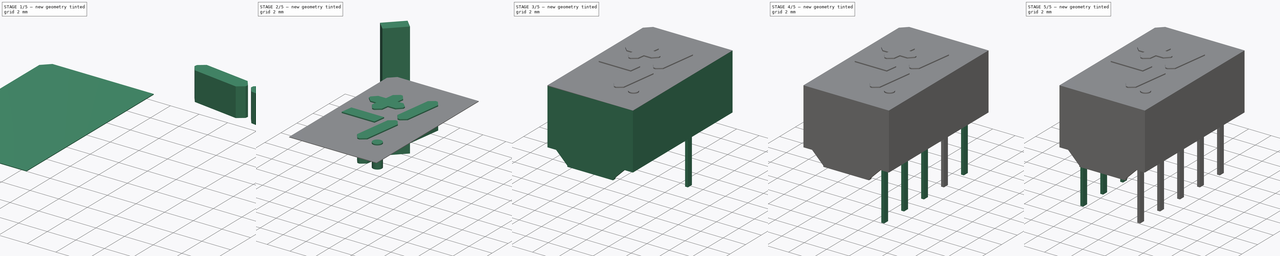
[diagram: build sequence overview — one tinted view per stage of 5, left to right]
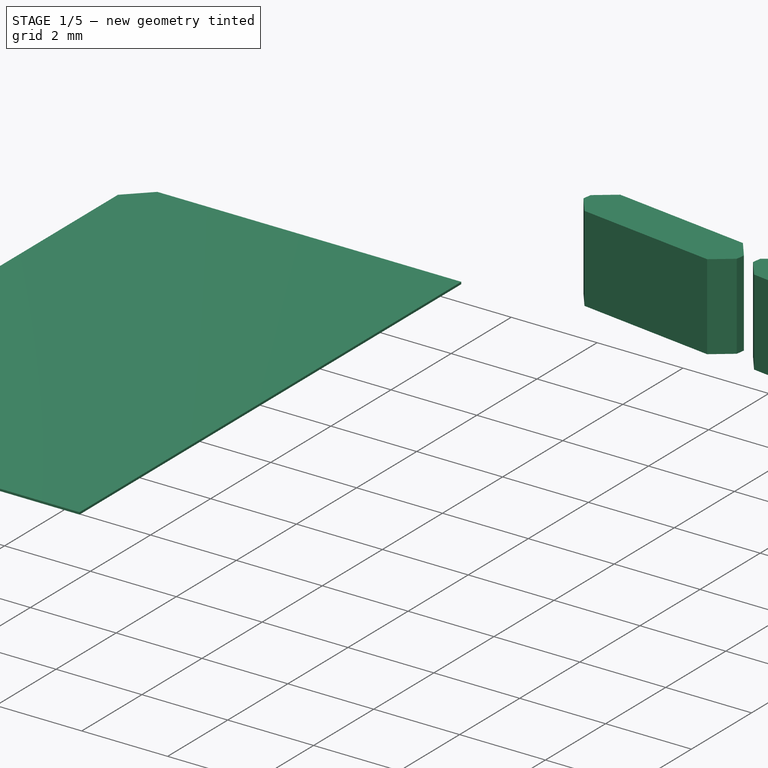
[diagram: stage 1 of 5 — iso view after this stage's code; geometry added in this stage tinted green]
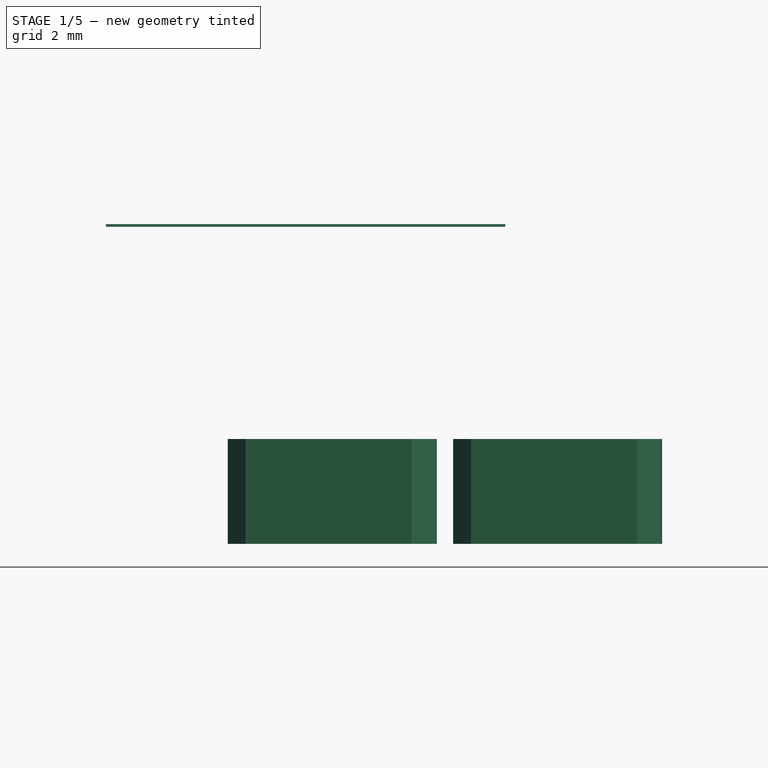
[diagram: stage 1 of 5 — front view after this stage's code; geometry added in this stage tinted green]
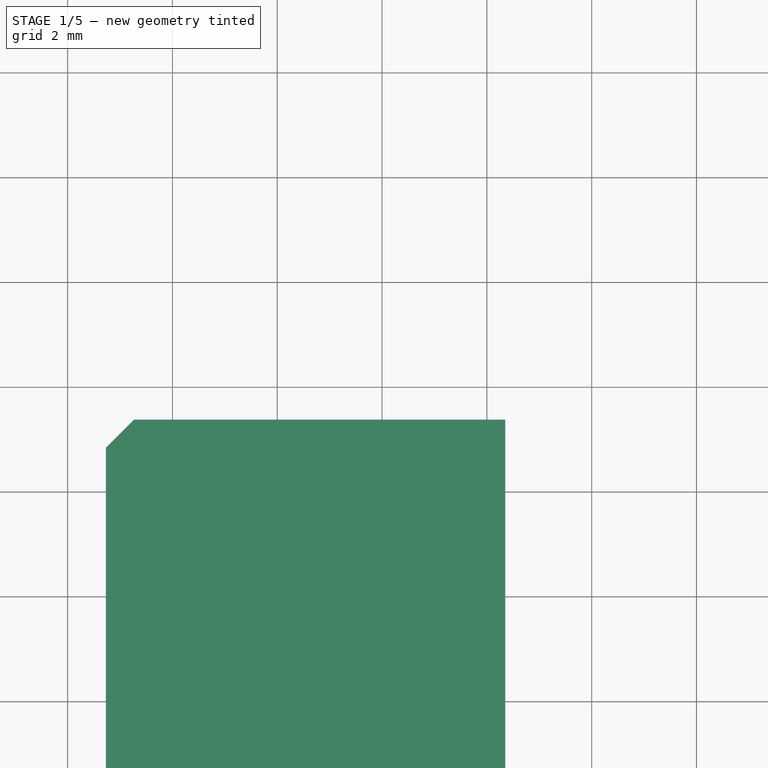
[diagram: stage 1 of 5 — top view after this stage's code; geometry added in this stage tinted green]
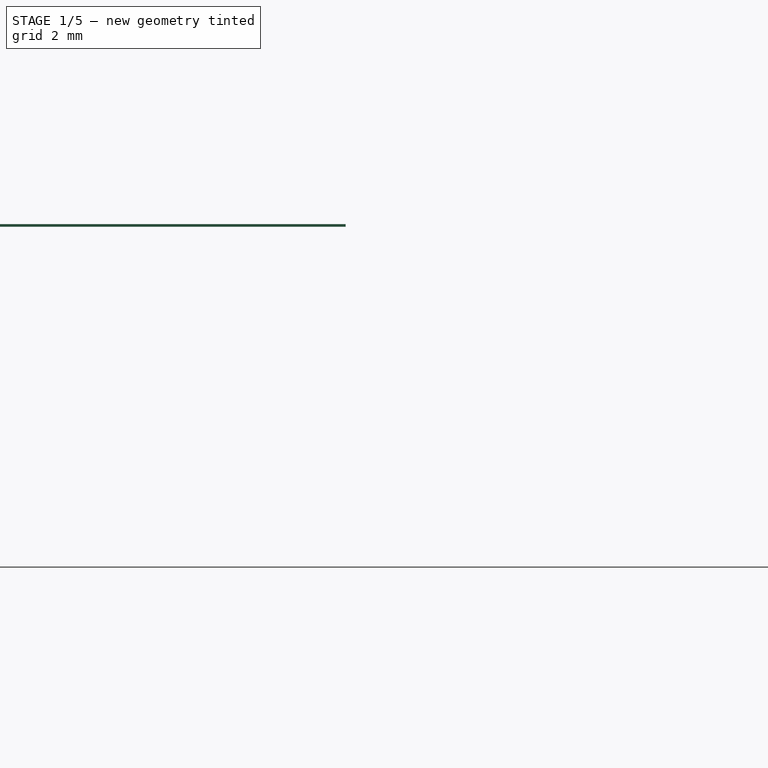
[diagram: stage 1 of 5 — right view after this stage's code; geometry added in this stage tinted green]
FCSTD DOCUMENT  (FreeCAD 0.17R11223 (Git))
Label: HDSP-7507_4
License: All rights reserved
LicenseURL: http://en.wikipedia.org/wiki/All_rights_reserved
objects: Part::Box×33, Part::Chamfer×13, Part::MultiFuse×11, Part::Cut×7, Sketcher::SketchObject×1, PartDesign::Pad×1, PartDesign::Body×1, Part::Cylinder×1, App::DocumentObjectGroup×1
note: 69 computed .brp shape members not serialized (recipe doc carries the construction recipe); baked Part::Feature solids carry a one-line shape summary decoded from their .brp

FEATURE [Part::Box] Box032  label="Kub032"
  AttacherType = Attacher::AttachEngine3D
  Height = 2
  Length = 3
  Placement = pos=(5.7,14.5,0) rot=(0,0,-1;0.139626rad)
  Width = 1
FEATURE [Part::Box] Box033  label="Kub033"
  AttacherType = Attacher::AttachEngine3D
  Height = 2
  Length = 4
  Placement = pos=(9,13,0) rot=(0,0,-1;0.139626rad)
  Width = 1
FEATURE [Part::Chamfer] Chamfer006
  Base = -> Box033
  Edges = 1 edges r=0.4: [Edge3]
FEATURE [Part::Chamfer] Chamfer007
  Base = -> Chamfer006
  Edges = 1 edges r=0.4: [Edge3]
  Placement = pos=(-3.7,-1,0) rot=(0,0,1;0rad)
FEATURE [Part::Box] Box043  label="Kub043"
  AttacherType = Attacher::AttachEngine3D
  Height = 2
  Length = 4
  Placement = pos=(0,18,0) rot=(0,0,-1;0.139626rad)
  Width = 1
FEATURE [Part::Chamfer] Chamfer017
  Base = -> Box043
  Edges = 1 edges r=0.4: [Edge5]
FEATURE [Part::Chamfer] Chamfer018
  Base = -> Chamfer017
  Edges = 1 edges r=0.4: [Edge3]
FEATURE [Part::Box] Box044  label="Kub045"
  AttacherType = Attacher::AttachEngine3D
  Height = 0.05
  Length = 7.62
  Placement = pos=(-1.27,-11.43,6.05) rot=(0,0,1;0rad)
  Width = 12.7
FEATURE [Part::Box] Box045  label="Kub044"
  AttacherType = Attacher::AttachEngine3D
  Height = 10
  Length = 2
  Placement = pos=(-1.5,0.5,0) rot=(0,0,1;0.785398rad)
  Width = 1
FEATURE [Part::Chamfer] Chamfer019  label="Minus001"
  Base = -> Box032
  Edges = 4 edges r=0.4: [Edge1,Edge3,Edge5,Edge7]
FEATURE [Part::Chamfer] Chamfer020  label="RightTop"
  Base = -> Chamfer007
  Edges = 2 edges r=0.4: [Edge17,Edge18]
FEATURE [Part::Chamfer] Chamfer021  label="RightBottom"
  Base = -> Chamfer018
  Edges = 2 edges r=0.4: [Edge17,Edge18]
  Placement = pos=(1,-5.5,0) rot=(0,0,1;0rad)
FEATURE [Part::Cut] Cut009  label="Top"
  Base = -> Box044
  Tool = -> Box045
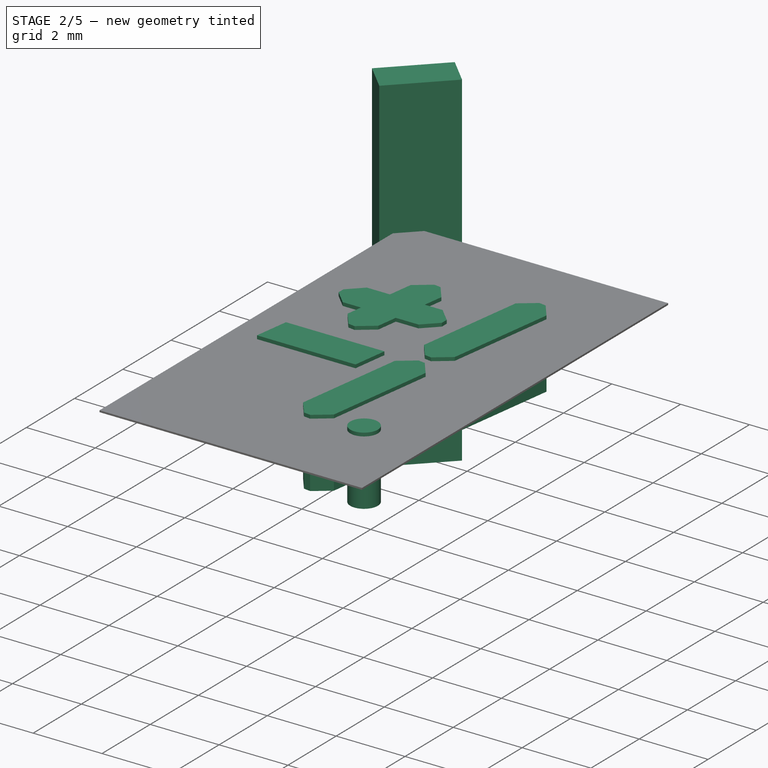
[diagram: stage 2 of 5 — iso view after this stage's code; geometry added in this stage tinted green]
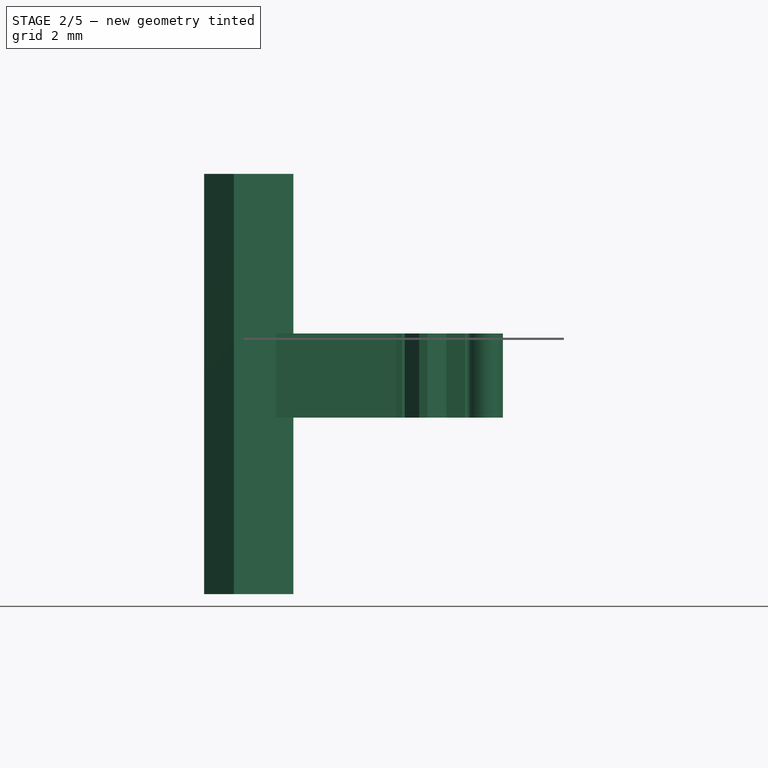
[diagram: stage 2 of 5 — front view after this stage's code; geometry added in this stage tinted green]
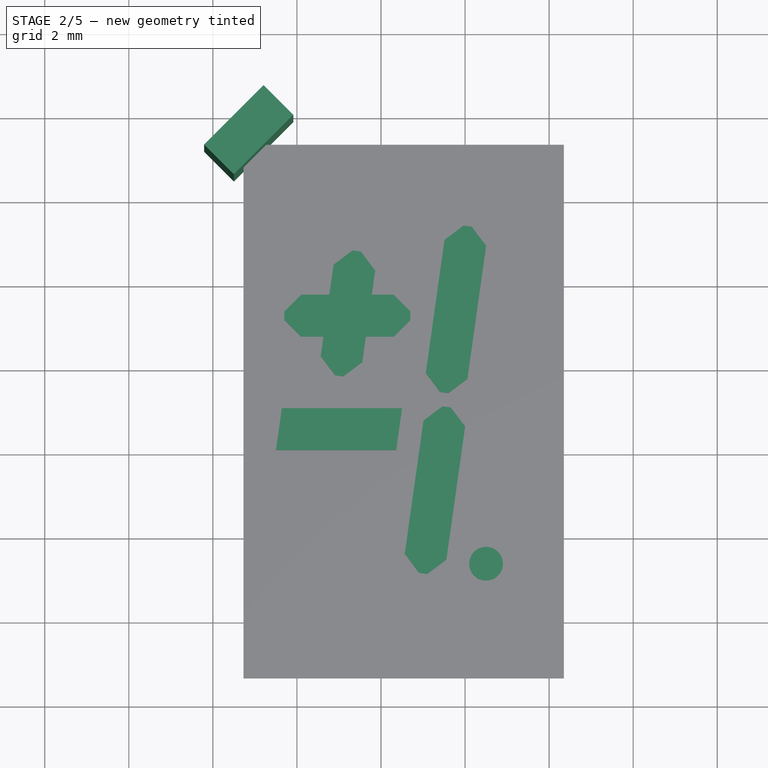
[diagram: stage 2 of 5 — top view after this stage's code; geometry added in this stage tinted green]
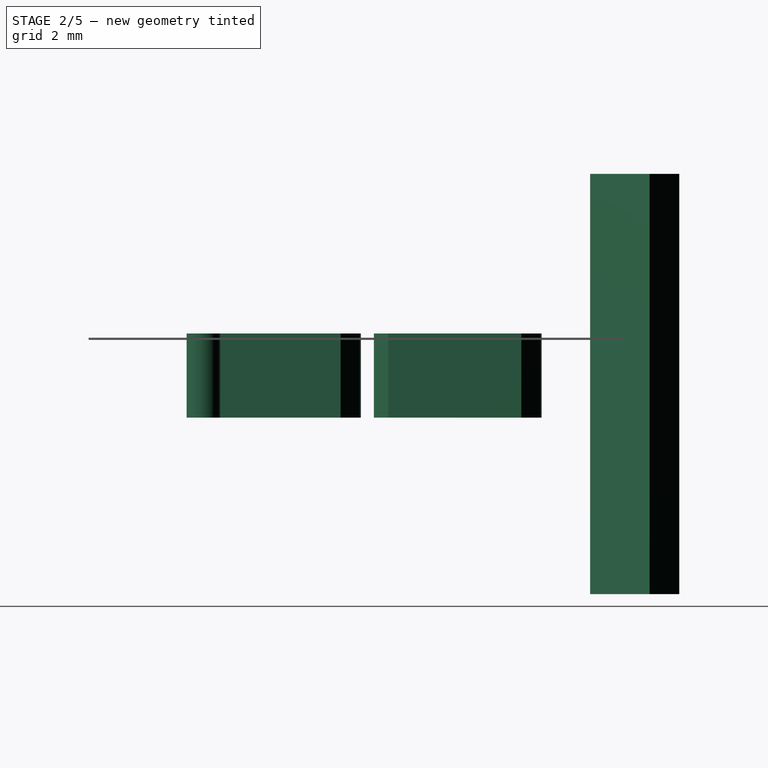
[diagram: stage 2 of 5 — right view after this stage's code; geometry added in this stage tinted green]
FEATURE [Part::Box] Box034  label="Kub034"
  AttacherType = Attacher::AttachEngine3D
  Height = 2
  Length = 1
  Placement = pos=(-3,14,0) rot=(0,0,1;0rad)
  Width = 4
FEATURE [Part::Box] Box035  label="Kub035"
  AttacherType = Attacher::AttachEngine3D
  Height = 2
  Length = 3
  Placement = pos=(-4,17.14,0) rot=(0,0,-1;0.139626rad)
  Width = 3
FEATURE [Part::Box] Box036  label="Kub036"
  AttacherType = Attacher::AttachEngine3D
  Height = 2
  Length = 3
  Placement = pos=(-4,13.27,0) rot=(0,0,-1;0.139626rad)
  Width = 1
FEATURE [Part::Box] Box037  label="Kub037"
  AttacherType = Attacher::AttachEngine3D
  Height = 2
  Length = 1
  Placement = pos=(-10,14,0) rot=(0,0,1;0rad)
  Width = 3
FEATURE [Part::Cut] Cut002
  Base = -> Box034
  Tool = -> Box036
FEATURE [Part::Cut] Cut003  label="Minus"
  Base = -> Cut002
  Placement = pos=(7,-0.5,0) rot=(0,0,1;0rad)
  Tool = -> Box035
FEATURE [Part::Chamfer] Chamfer012
  Base = -> Box037
  Edges = 1 edges r=0.4: [Edge5]
FEATURE [Part::Chamfer] Chamfer013
  Base = -> Chamfer012
  Edges = 1 edges r=0.4: [Edge3]
FEATURE [Part::Chamfer] Chamfer014
  Base = -> Chamfer013
  Edges = 1 edges r=0.4: [Edge18]
FEATURE [Part::Chamfer] Chamfer015  label="Minus002"
  Base = -> Chamfer014
  Edges = 1 edges r=0.4: [Edge15]
  Placement = pos=(16.7,-0.7,0) rot=(0,0,1;0rad)
FEATURE [Part::Cylinder] Cylinder016  label="Dot"
  Angle = 360
  AttacherType = Attacher::AttachEngine3D
  Height = 2
  Placement = pos=(1.3,11.5,0) rot=(0,0,1;0rad)
  Radius = 0.4
FEATURE [Part::Box] Box042  label="Kub042"
  AttacherType = Attacher::AttachEngine3D
  Height = 10
  Length = 2
  Placement = pos=(-1.5,0.5,0) rot=(0,0,1;0.785398rad)
  Width = 1
FEATURE [Part::MultiFuse] Fusion014  label="Digit"
  Placement = pos=(16,-10,4.2) rot=(0,0,1;1.5708rad)
  Shapes = -> [Chamfer015,Chamfer019,Chamfer020,Chamfer021,Cut003,Cylinder016]
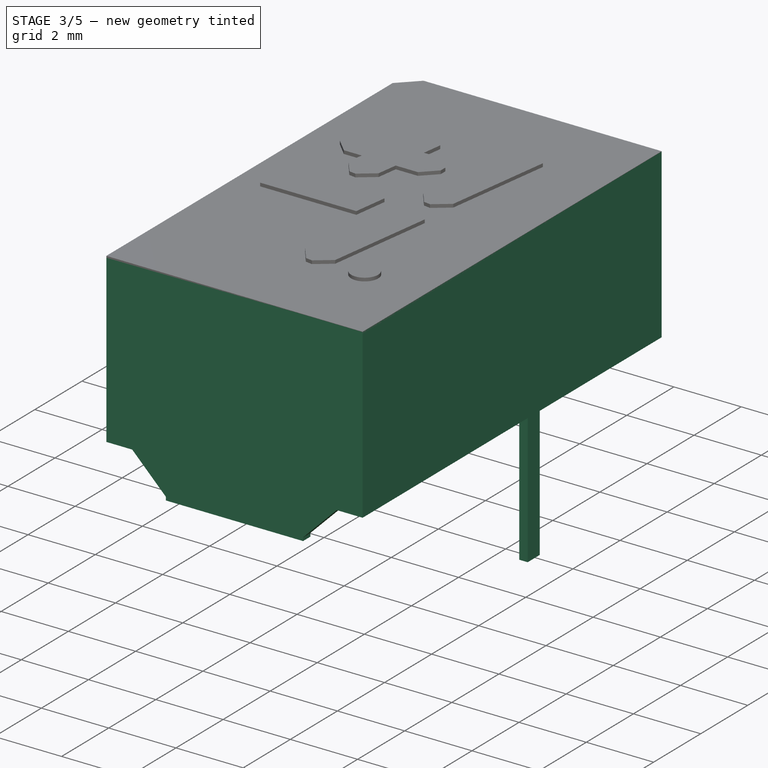
[diagram: stage 3 of 5 — iso view after this stage's code; geometry added in this stage tinted green]
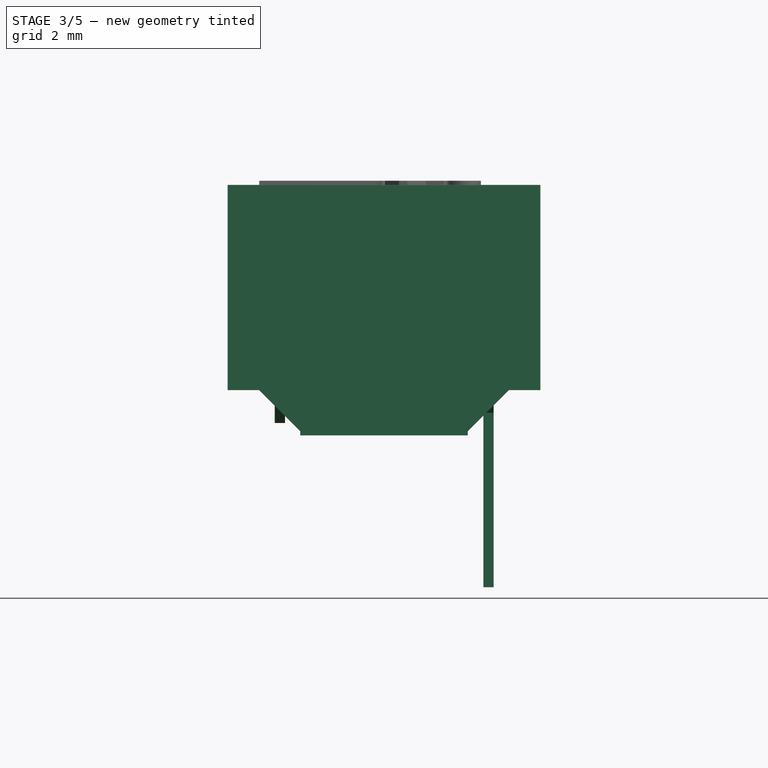
[diagram: stage 3 of 5 — front view after this stage's code; geometry added in this stage tinted green]
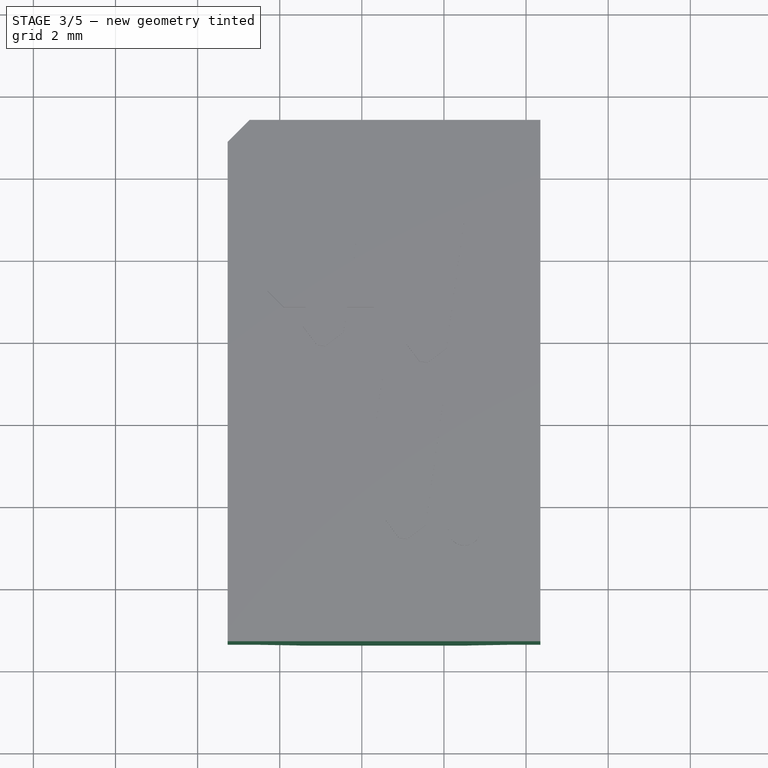
[diagram: stage 3 of 5 — top view after this stage's code; geometry added in this stage tinted green]
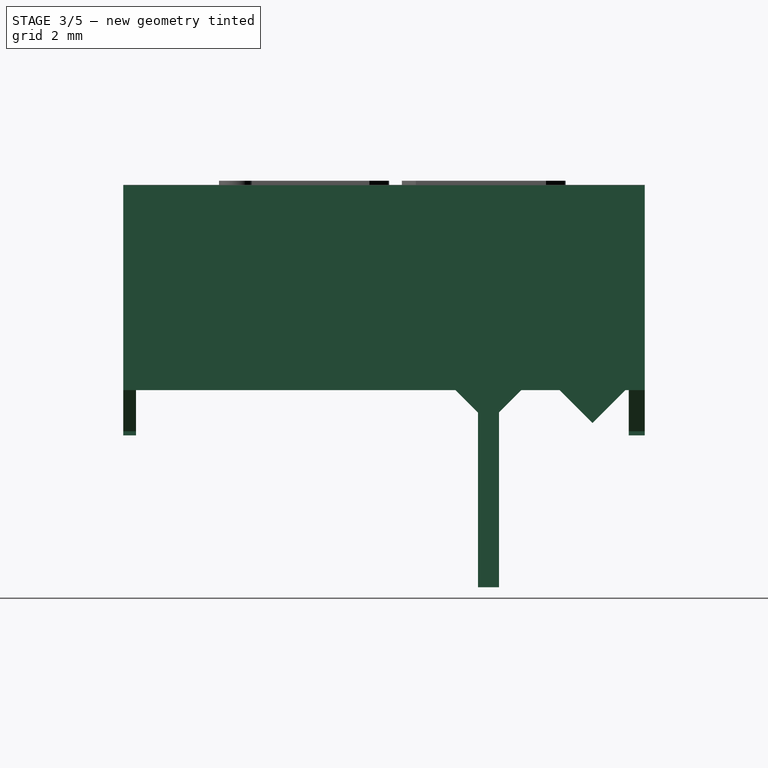
[diagram: stage 3 of 5 — right view after this stage's code; geometry added in this stage tinted green]
FEATURE [Sketcher::SketchObject] Sketch
  MapMode = 5
  Support = -> [XY_Plane]
  sketch-geometry (4):
    g0: LineSegment StartX=-1.27 StartY=1.27 StartZ=0 EndX=6.35 EndY=1.27 EndZ=0
    g1: LineSegment StartX=6.35 StartY=1.27 StartZ=0 EndX=6.35 EndY=-11.43 EndZ=0
    g2: LineSegment StartX=6.35 StartY=-11.43 StartZ=0 EndX=-1.27 EndY=-11.43 EndZ=0
    g3: LineSegment StartX=-1.27 StartY=-11.43 StartZ=0 EndX=-1.27 EndY=1.27 EndZ=0
  constraints (12):
    c: Coincident(g0,g1)
    c: Coincident(g1,g2)
    c: Coincident(g2,g3)
    c: Coincident(g3,g0)
    c: Horizontal(g0)
    c: Horizontal(g2)
    c: Vertical(g1)
    c: Vertical(g3)
    c: DistanceY(g1,g0) = 12.7
    c: DistanceX(g2,g1) = 7.62
    c: DistanceX(g0,g-1) = 1.27
    c: DistanceY(g-1,g0) = 1.27
FEATURE [PartDesign::Pad] Pad
  Length = 6.09
  Length2 = 100
  Profile = -> Sketch
  Type = 0
FEATURE [PartDesign::Body] Body
  Group = -> [Sketch,Pad]
  Origin = -> BodyOrigin
  Tip = -> Pad
FEATURE [Part::Box] Box  label="Kub"
  AttacherType = Attacher::AttachEngine3D
  Height = 1.1
  Length = 3
  Placement = pos=(4.58,-19,0) rot=(0,0,1;0rad)
  Width = 22
FEATURE [Part::Box] Box001  label="Kub001"
  AttacherType = Attacher::AttachEngine3D
  Height = 1.1
  Length = 20
  Placement = pos=(-6,-11.12,0) rot=(0,0,1;0rad)
  Width = 12
FEATURE [Part::Box] Box025  label="Kub025"
  AttacherType = Attacher::AttachEngine3D
  Height = 1.5
  Length = 0.25
  Placement = pos=(-0.12,0,0.3) rot=(1,0,0;0.785398rad)
  Width = 1.5
FEATURE [Part::Box] Box026  label="Kub026"
  AttacherType = Attacher::AttachEngine3D
  Height = 6
  Length = 0.25
  Placement = pos=(-0.12,-0.2505,-3.7) rot=(0,0,1;0rad)
  Width = 0.51
FEATURE [Part::Box] Box027  label="Kub027"
  AttacherType = Attacher::AttachEngine3D
  Height = 1.5
  Length = 0.25
  Placement = pos=(-0.12,0,0.3) rot=(1,0,0;0.785398rad)
  Width = 1.5
FEATURE [Part::MultiFuse] Fusion012  label="Leg009"
  Placement = pos=(5.08,-2.54,0) rot=(0,0,1;0rad)
  Shapes = -> [Box026,Box027]
FEATURE [App::DocumentObjectGroup] Grupp  label="Legs"
  Group = -> [Fusion,Fusion001,Fusion002,Fusion003,Fusion004,Fusion009,Fusion010,Fusion011,Fusion012,Fusion013]
FEATURE [Part::Box] Box041  label="Kub041"
  AttacherType = Attacher::AttachEngine3D
  Height = 1.1
  Length = 3
  Placement = pos=(-2.5,-18,0) rot=(0,0,1;0rad)
  Width = 22
FEATURE [Part::Cut] Cut
  Base = -> Body
  Tool = -> Box001
FEATURE [Part::Chamfer] Chamfer
  Base = -> Box
  Edges = 1 edges r=1: [Edge2]
FEATURE [Part::Chamfer] Chamfer016
  Base = -> Box041
  Edges = 1 edges r=1: [Edge6]
FEATURE [Part::Cut] Cut006
  Base = -> Cut
  Tool = -> Chamfer
FEATURE [Part::Cut] Cut007
  Base = -> Cut006
  Tool = -> Chamfer016
FEATURE [Part::Cut] Cut008  label="Main body"
  Base = -> Cut007
  Tool = -> Box042
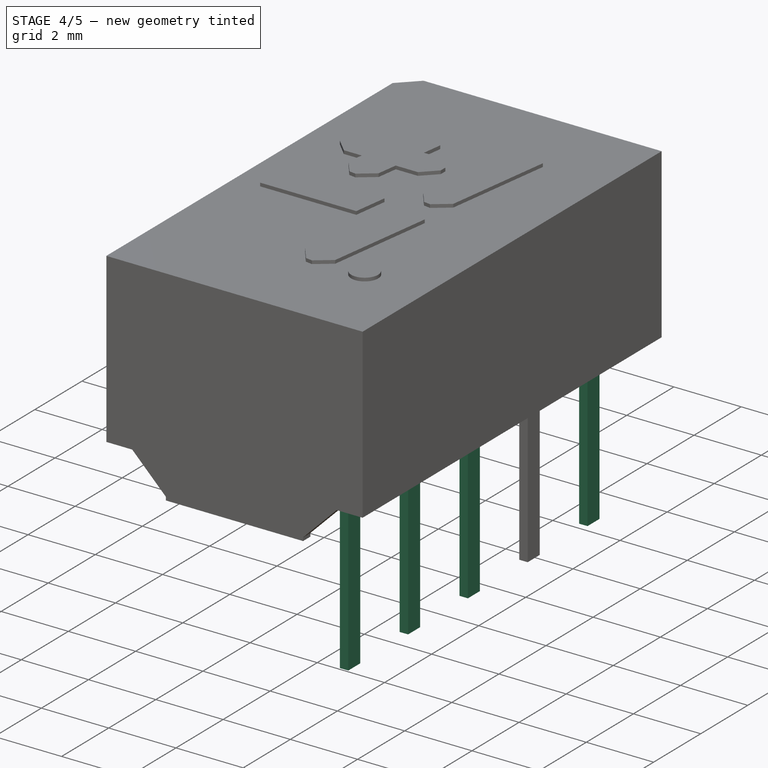
[diagram: stage 4 of 5 — iso view after this stage's code; geometry added in this stage tinted green]
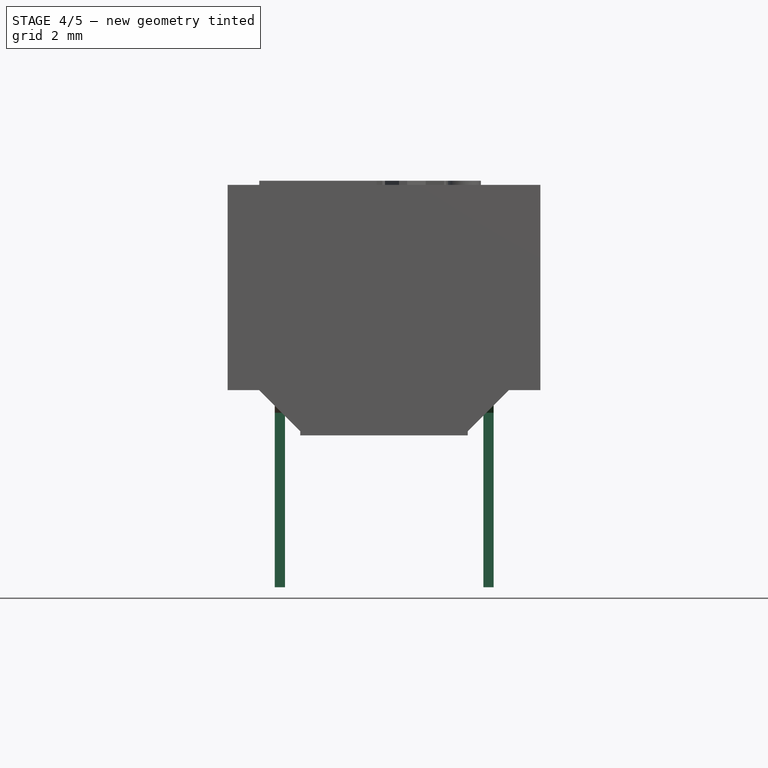
[diagram: stage 4 of 5 — front view after this stage's code; geometry added in this stage tinted green]
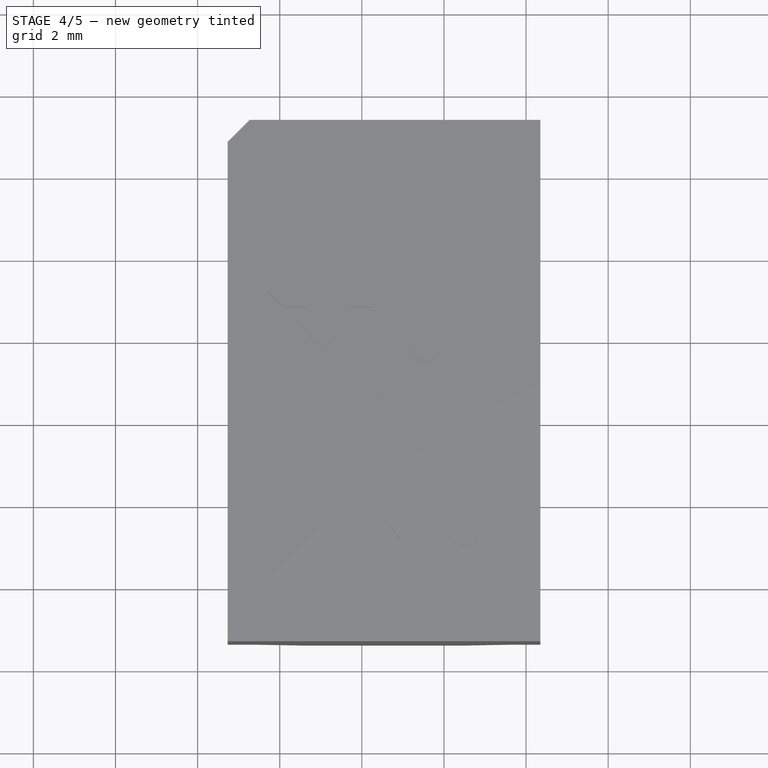
[diagram: stage 4 of 5 — top view after this stage's code; geometry added in this stage tinted green]
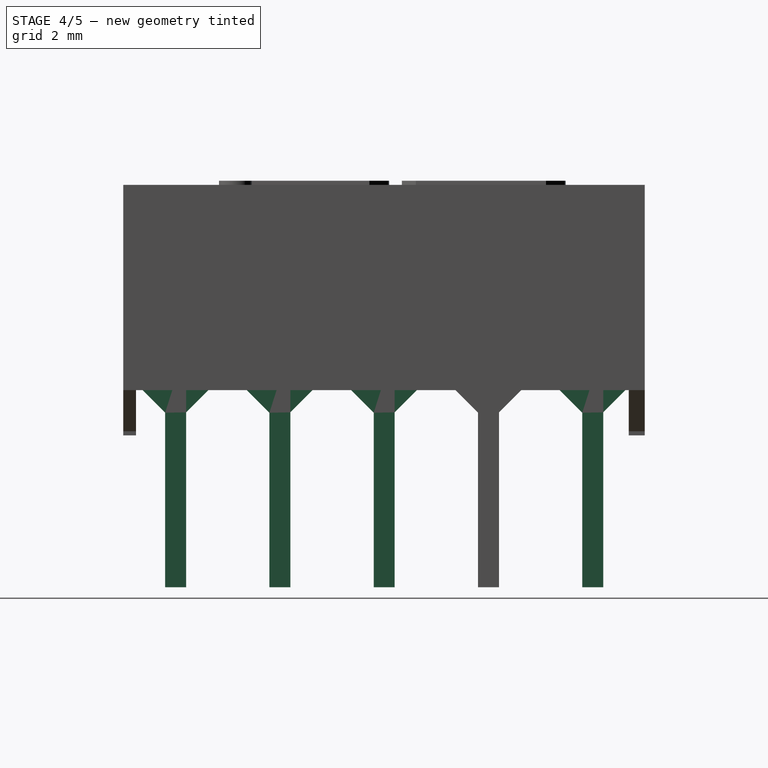
[diagram: stage 4 of 5 — right view after this stage's code; geometry added in this stage tinted green]
FEATURE [Part::Box] Box010  label="Kub010"
  AttacherType = Attacher::AttachEngine3D
  Height = 6
  Length = 0.25
  Placement = pos=(-0.12,-0.2505,-3.7) rot=(0,0,1;0rad)
  Width = 0.51
FEATURE [Part::Box] Box011  label="Kub011"
  AttacherType = Attacher::AttachEngine3D
  Height = 1.5
  Length = 0.25
  Placement = pos=(-0.12,0,0.3) rot=(1,0,0;0.785398rad)
  Width = 1.5
FEATURE [Part::Box] Box020  label="Kub020"
  AttacherType = Attacher::AttachEngine3D
  Height = 6
  Length = 0.25
  Placement = pos=(-0.12,-0.2505,-3.7) rot=(0,0,1;0rad)
  Width = 0.51
FEATURE [Part::Box] Box021  label="Kub021"
  AttacherType = Attacher::AttachEngine3D
  Height = 1.5
  Length = 0.25
  Placement = pos=(-0.12,0,0.3) rot=(1,0,0;0.785398rad)
  Width = 1.5
FEATURE [Part::MultiFuse] Fusion009  label="Leg006"
  Placement = pos=(5.08,-10.16,0) rot=(0,0,1;0rad)
  Shapes = -> [Box020,Box021]
FEATURE [Part::Box] Box028  label="Kub028"
  AttacherType = Attacher::AttachEngine3D
  Height = 6
  Length = 0.25
  Placement = pos=(-0.12,-0.2505,-3.7) rot=(0,0,1;0rad)
  Width = 0.51
FEATURE [Part::Box] Box024  label="Kub024"
  AttacherType = Attacher::AttachEngine3D
  Height = 6
  Length = 0.25
  Placement = pos=(-0.12,-0.2505,-3.7) rot=(0,0,1;0rad)
  Width = 0.51
FEATURE [Part::Box] Box022  label="Kub022"
  AttacherType = Attacher::AttachEngine3D
  Height = 6
  Length = 0.25
  Placement = pos=(-0.12,-0.2505,-3.7) rot=(0,0,1;0rad)
  Width = 0.51
FEATURE [Part::Box] Box023  label="Kub023"
  AttacherType = Attacher::AttachEngine3D
  Height = 1.5
  Length = 0.25
  Placement = pos=(-0.12,0,0.3) rot=(1,0,0;0.785398rad)
  Width = 1.5
FEATURE [Part::Box] Box029  label="Kub029"
  AttacherType = Attacher::AttachEngine3D
  Height = 1.5
  Length = 0.25
  Placement = pos=(-0.12,0,0.3) rot=(1,0,0;0.785398rad)
  Width = 1.5
FEATURE [Part::MultiFuse] Fusion013  label="Leg010"
  Placement = pos=(5.08,0,0) rot=(0,0,1;0rad)
  Shapes = -> [Box028,Box029]
FEATURE [Part::MultiFuse] Fusion010  label="Leg007"
  Placement = pos=(5.08,-7.62,0) rot=(0,0,1;0rad)
  Shapes = -> [Box022,Box023]
FEATURE [Part::MultiFuse] Fusion011  label="Leg008"
  Placement = pos=(5.08,-5.08,0) rot=(0,0,1;0rad)
  Shapes = -> [Box024,Box025]
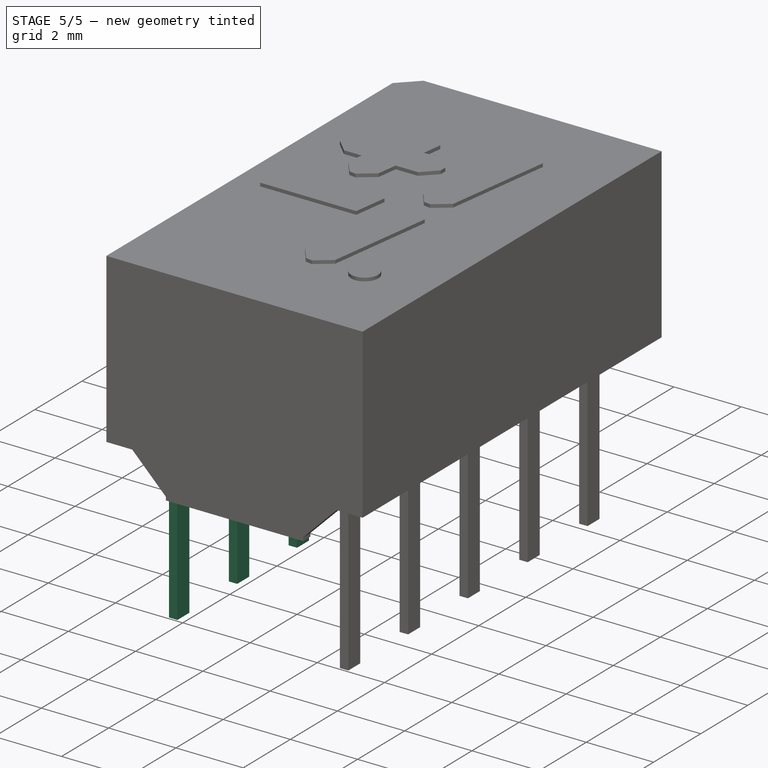
[diagram: stage 5 of 5 — iso view after this stage's code; geometry added in this stage tinted green]
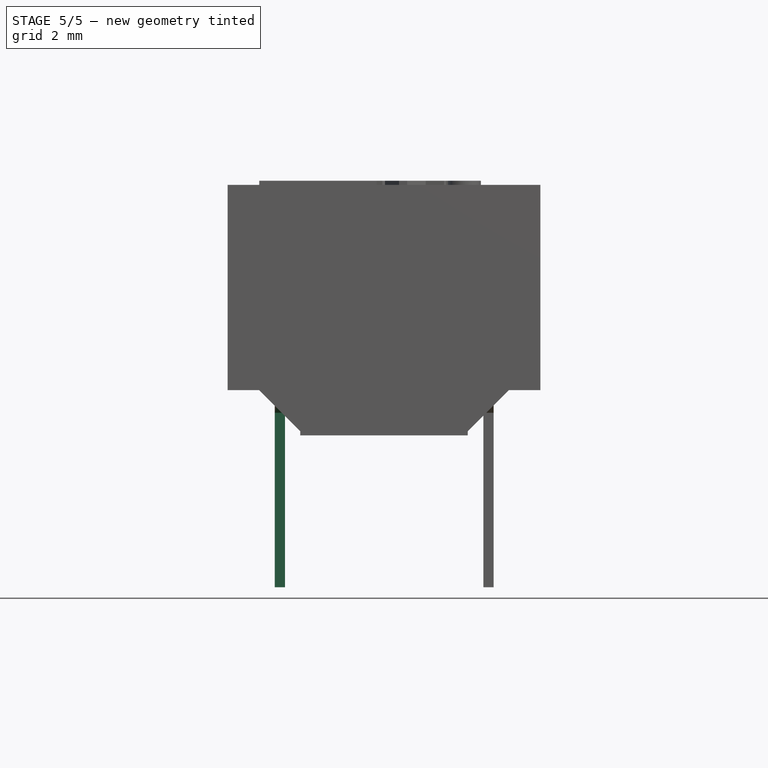
[diagram: stage 5 of 5 — front view after this stage's code; geometry added in this stage tinted green]
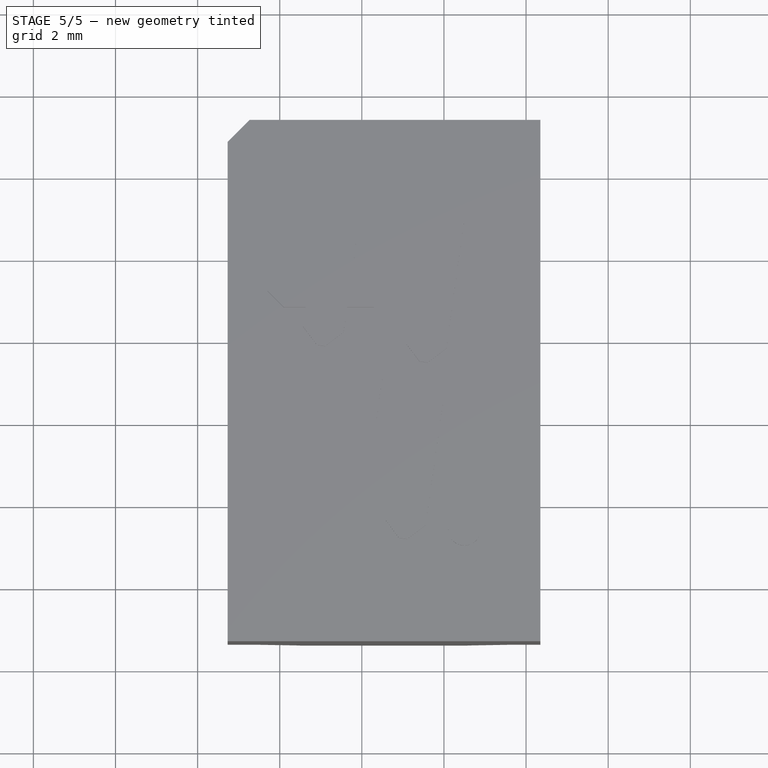
[diagram: stage 5 of 5 — top view after this stage's code; geometry added in this stage tinted green]
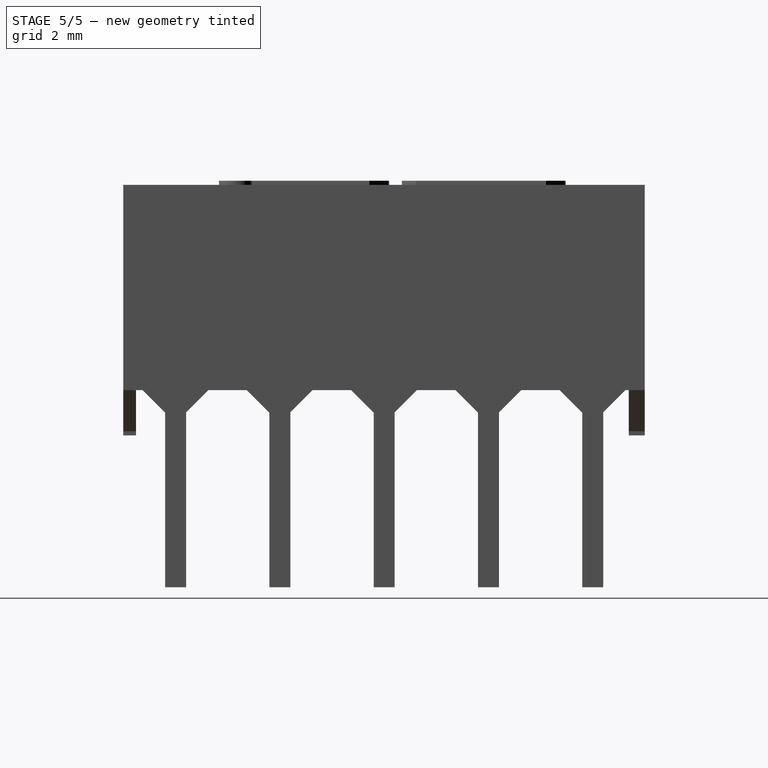
[diagram: stage 5 of 5 — right view after this stage's code; geometry added in this stage tinted green]
FEATURE [Part::Box] Box002  label="Kub002"
  AttacherType = Attacher::AttachEngine3D
  Height = 6
  Length = 0.25
  Placement = pos=(-0.12,-0.25,-3.7) rot=(0,0,1;0rad)
  Width = 0.51
FEATURE [Part::Box] Box003  label="Kub003"
  AttacherType = Attacher::AttachEngine3D
  Height = 1.5
  Length = 0.25
  Placement = pos=(-0.12,0,0.3) rot=(1,0,0;0.785398rad)
  Width = 1.5
FEATURE [Part::MultiFuse] Fusion  label="Leg001"
  Shapes = -> [Box002,Box003]
FEATURE [Part::Box] Box004  label="Kub004"
  AttacherType = Attacher::AttachEngine3D
  Height = 6
  Length = 0.25
  Placement = pos=(-0.12,-0.2505,-3.7) rot=(0,0,1;0rad)
  Width = 0.51
FEATURE [Part::Box] Box005  label="Kub005"
  AttacherType = Attacher::AttachEngine3D
  Height = 1.5
  Length = 0.25
  Placement = pos=(-0.12,0,0.3) rot=(1,0,0;0.785398rad)
  Width = 1.5
FEATURE [Part::MultiFuse] Fusion001  label="Leg002"
  Placement = pos=(0,-2.54,0) rot=(0,0,1;0rad)
  Shapes = -> [Box004,Box005]
FEATURE [Part::Box] Box006  label="Kub006"
  AttacherType = Attacher::AttachEngine3D
  Height = 6
  Length = 0.25
  Placement = pos=(-0.12,-0.2505,-3.7) rot=(0,0,1;0rad)
  Width = 0.51
FEATURE [Part::Box] Box007  label="Kub007"
  AttacherType = Attacher::AttachEngine3D
  Height = 1.5
  Length = 0.25
  Placement = pos=(-0.12,0,0.3) rot=(1,0,0;0.785398rad)
  Width = 1.5
FEATURE [Part::MultiFuse] Fusion002  label="Leg003"
  Placement = pos=(0,-5.08,0) rot=(0,0,1;0rad)
  Shapes = -> [Box006,Box007]
FEATURE [Part::Box] Box008  label="Kub008"
  AttacherType = Attacher::AttachEngine3D
  Height = 6
  Length = 0.25
  Placement = pos=(-0.12,-0.2505,-3.7) rot=(0,0,1;0rad)
  Width = 0.51
FEATURE [Part::Box] Box009  label="Kub009"
  AttacherType = Attacher::AttachEngine3D
  Height = 1.5
  Length = 0.25
  Placement = pos=(-0.12,0,0.3) rot=(1,0,0;0.785398rad)
  Width = 1.5
FEATURE [Part::MultiFuse] Fusion003  label="Leg004"
  Placement = pos=(0,-7.62,0) rot=(0,0,1;0rad)
  Shapes = -> [Box008,Box009]
FEATURE [Part::MultiFuse] Fusion004  label="Leg005"
  Placement = pos=(0,-10.16,0) rot=(0,0,1;0rad)
  Shapes = -> [Box010,Box011]
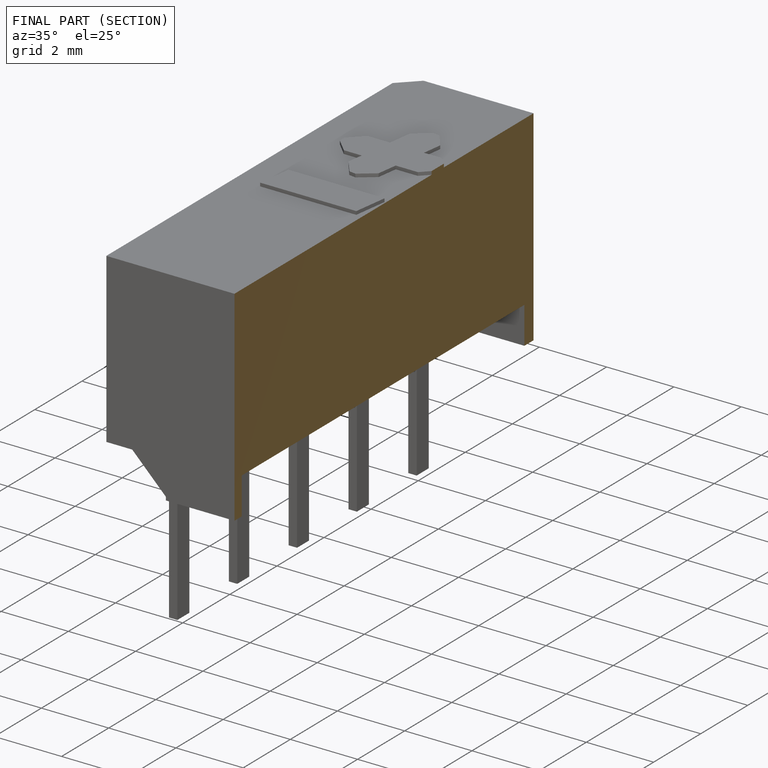
[diagram: finished part — half-section view (interior)]
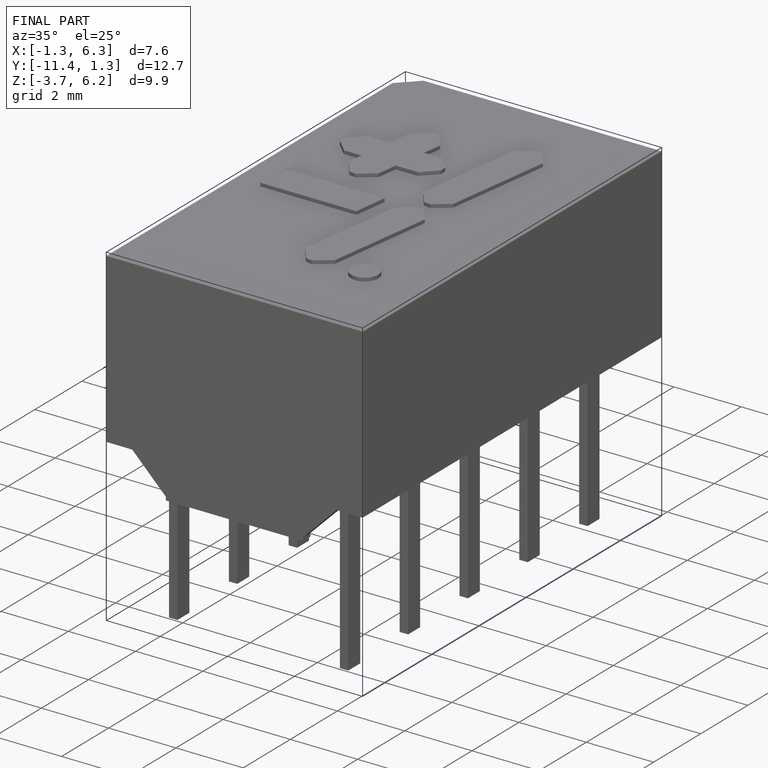
[diagram: finished part — iso view with bounding-box wireframe]
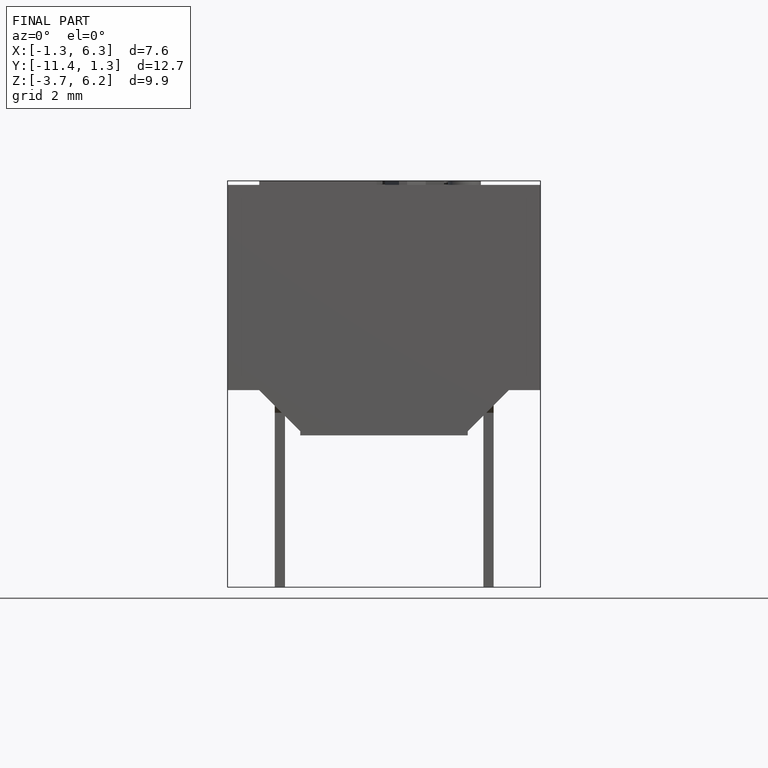
[diagram: finished part — front view with bounding-box wireframe]
